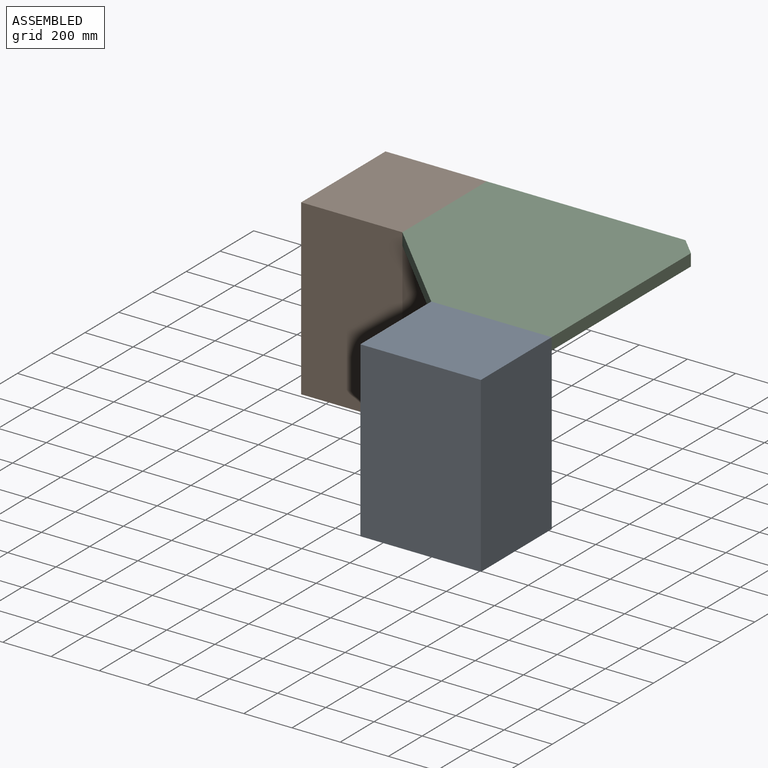
[diagram: assembled view]
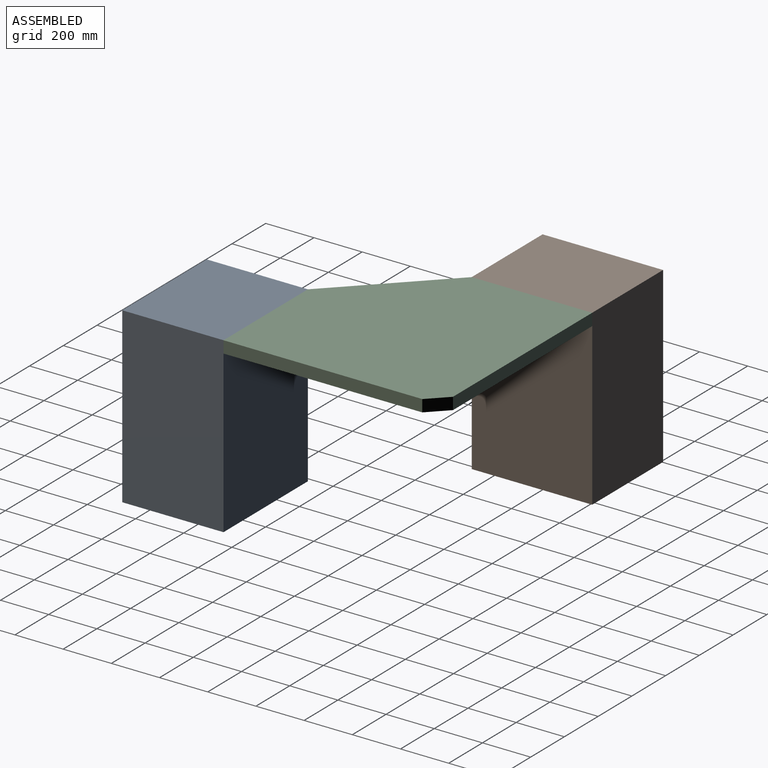
[diagram: assembled view, second angle]
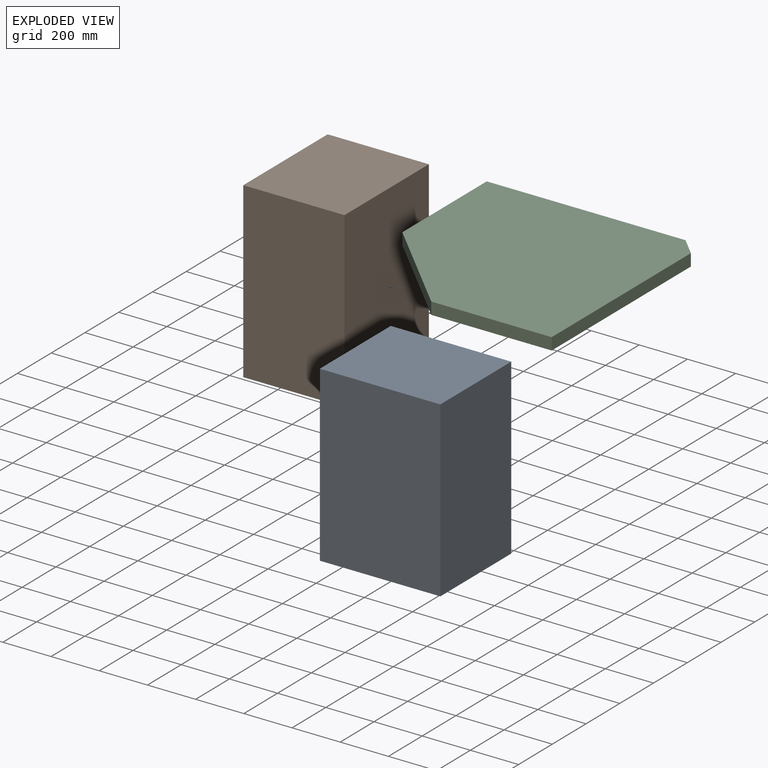
[diagram: exploded view]
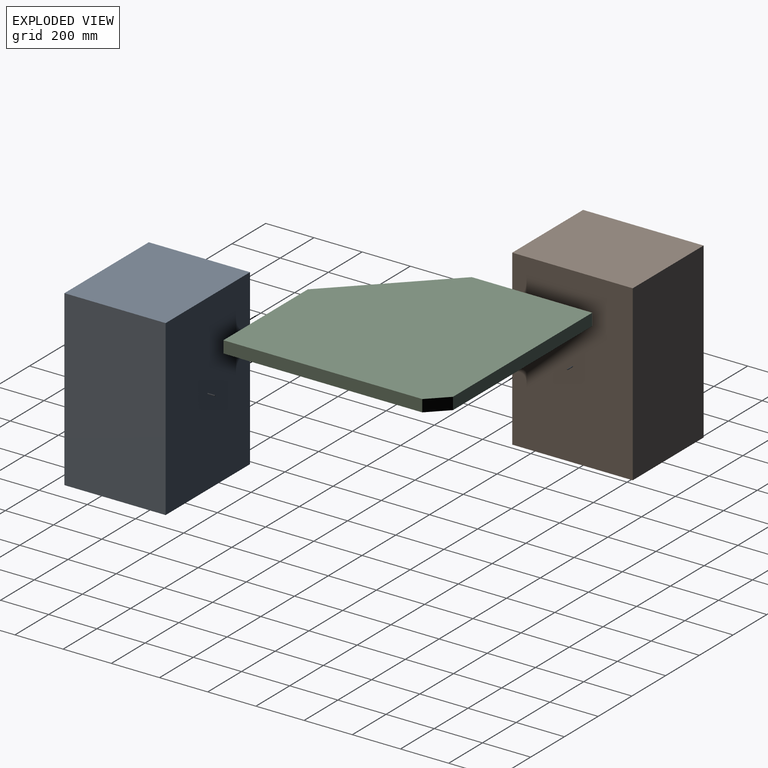
[diagram: exploded view, second angle]
ASSEMBLY  parts=3 mates=2
PART A: 6 faces, bbox 420x500x720 mm
  f0: plane 720x500mm, normal (-1,0,0), area 360000mm2, adj f1,f3,f4,f5
  f1: plane 720x420mm, normal (0,-1,0), area 302400mm2, adj f0,f2,f4,f5
  f2: plane 720x500mm, normal (1,0,0), area 360000mm2, adj f1,f3,f4,f5
  f3: plane 720x420mm, normal (0,1,0), area 302400mm2, adj f0,f2,f4,f5
  f4: plane 500x420mm, normal (0,0,1), area 210000mm2, adj f0,f1,f2,f3
  f5: plane 500x420mm, normal (0,0,-1), area 210000mm2, adj f0,f1,f2,f3
PART B: same geometry as A
PART C: 8 faces, bbox 900x900x50 mm
  f0: plane 500x50mm, normal (-1,0,0), area 25000mm2, adj f1,f5,f6,f7
  f1: plane 400x400mm, normal (-0.71,-0.71,0), area 28284.3mm2, adj f0,f2,f6,f7
  f2: plane 500x50mm, normal (0,-1,0), area 25000mm2, adj f1,f3,f6,f7
  f3: plane 825x50mm, normal (1,0,0), area 41250mm2, adj f2,f4,f6,f7
  f4: plane 75x75mm, normal (0.71,0.71,0), area 5303.3mm2, adj f3,f5,f6,f7
  f5: plane 825x50mm, normal (0,1,0), area 41250mm2, adj f0,f4,f6,f7
  f6: plane 900x900mm, normal (0,0,-1), area 727187.5mm2, adj f0,f1,f2,f3,f4,f5
  f7: plane 900x900mm, normal (0,0,1), area 727187.5mm2, adj f0,f1,f2,f3,f4,f5
PLACE A rot(axis=(0,0,-1),90deg) t=(515.93,-483.5,-28.78)mm
PLACE B t=(-304.07,-83.5,-28.78)mm fixed
PLACE C t=(115.93,-83.5,691.22)mm
MATE fastened B.f4 <-> C.f7  axis (0,0,1) through (115.93,416.5,691.22)mm
MATE fastened C.f7 <-> A.f4  axis (0,0,1) through (1015.93,-483.5,691.22)mm
